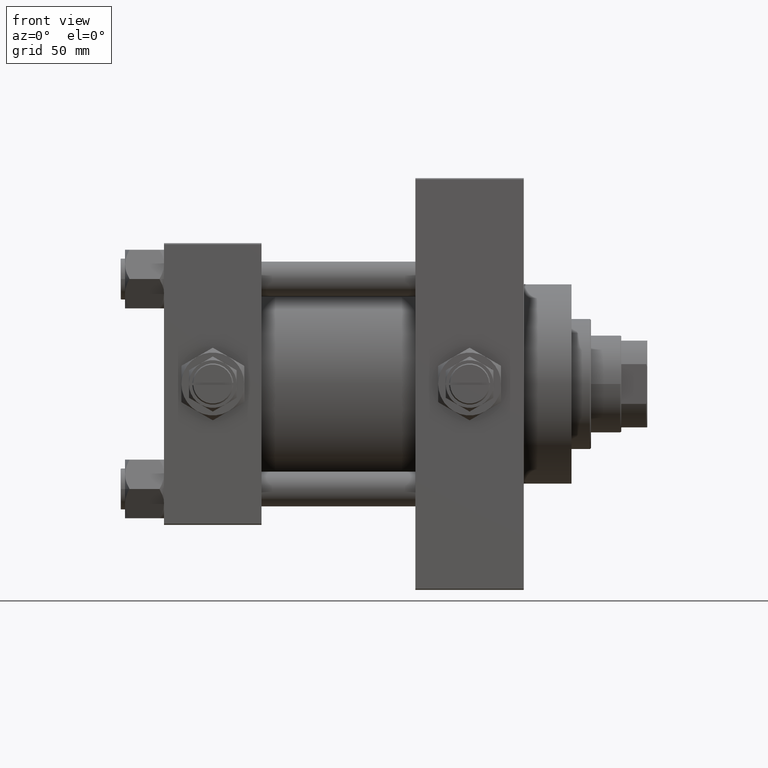
[diagram: clean part render]
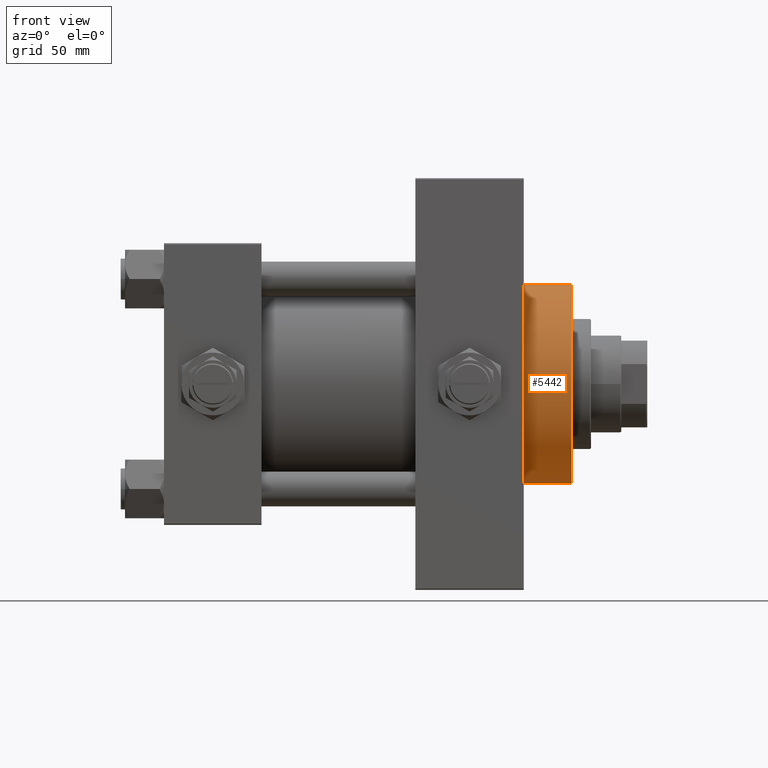
[diagram: same view with one face highlighted and labeled with its STEP entity id]
A machine part, front view. The second image highlights one B-rep face of the part: STEP entity #5442.
In plain terms, the highlighted cylindrical surface (partial cylindrical patch) has radius 46 mm, axis along (-1, -0, -0).
Its self-contained STEP definition (entity closure, byte-faithful):
#458 = CARTESIAN_POINT ( 'NONE',  ( 187.9999999999999716, 5.633375276077824704E-15, -46.00000000000000000 ) ) ;
#733 = EDGE_CURVE ( 'NONE', #34180, #32342, #6684, .T. ) ;
#864 = CARTESIAN_POINT ( 'NONE',  ( 165.9999999999999716, 5.633375276077824704E-15, -46.00000000000000000 ) ) ;
#981 = DIRECTION ( 'NONE',  ( -1.000000000000000000, -0.000000000000000000, -0.000000000000000000 ) ) ;
#2581 = EDGE_CURVE ( 'NONE', #34180, #34411, #13034, .T. ) ;
#2606 = EDGE_CURVE ( 'NONE', #32342, #15191, #34950, .T. ) ;
#5442 = ADVANCED_FACE ( 'NONE', ( #46807 ), #24882, .T. ) ;
#6684 = CIRCLE ( 'NONE', #25975, 46.00000000000000000 ) ;
#7596 = DIRECTION ( 'NONE',  ( 0.000000000000000000, 0.000000000000000000, -1.000000000000000000 ) ) ;
#8864 = CARTESIAN_POINT ( 'NONE',  ( 187.9999999999999716, 0.000000000000000000, 46.00000000000000000 ) ) ;
#9256 = CARTESIAN_POINT ( 'NONE',  ( 187.9999999999999716, 0.000000000000000000, 46.00000000000000000 ) ) ;
#9952 = VECTOR ( 'NONE', #25289, 1000.000000000000000 ) ;
#13034 = LINE ( 'NONE', #9256, #39709 ) ;
#13973 = AXIS2_PLACEMENT_3D ( 'NONE', #43541, #981, #39749 ) ;
#14155 = ORIENTED_EDGE ( 'NONE', *, *, #45663, .T. ) ;
#15191 = VERTEX_POINT ( 'NONE', #864 ) ;
#18969 = CARTESIAN_POINT ( 'NONE',  ( 187.9999999999999716, 5.633375276077824704E-15, -46.00000000000000000 ) ) ;
#20012 = CARTESIAN_POINT ( 'NONE',  ( 187.9999999999999716, 0.000000000000000000, 0.000000000000000000 ) ) ;
#20370 = CARTESIAN_POINT ( 'NONE',  ( 165.9999999999999716, 0.000000000000000000, 46.00000000000000000 ) ) ;
#20446 = ORIENTED_EDGE ( 'NONE', *, *, #2581, .T. ) ;
#24882 = CYLINDRICAL_SURFACE ( 'NONE', #13973, 46.00000000000000000 ) ;
#25289 = DIRECTION ( 'NONE',  ( -1.000000000000000000, -0.000000000000000000, -0.000000000000000000 ) ) ;
#25975 = AXIS2_PLACEMENT_3D ( 'NONE', #20012, #43690, #31109 ) ;
#31109 = DIRECTION ( 'NONE',  ( 0.000000000000000000, 0.000000000000000000, -1.000000000000000000 ) ) ;
#32342 = VERTEX_POINT ( 'NONE', #18969 ) ;
#34180 = VERTEX_POINT ( 'NONE', #8864 ) ;
#34411 = VERTEX_POINT ( 'NONE', #20370 ) ;
#34950 = LINE ( 'NONE', #458, #9952 ) ;
#39316 = AXIS2_PLACEMENT_3D ( 'NONE', #45359, #46101, #7596 ) ;
#39709 = VECTOR ( 'NONE', #39973, 1000.000000000000000 ) ;
#39749 = DIRECTION ( 'NONE',  ( 0.000000000000000000, 0.000000000000000000, 1.000000000000000000 ) ) ;
#39973 = DIRECTION ( 'NONE',  ( -1.000000000000000000, -0.000000000000000000, -0.000000000000000000 ) ) ;
#43541 = CARTESIAN_POINT ( 'NONE',  ( 187.9999999999999716, 0.000000000000000000, 0.000000000000000000 ) ) ;
#43690 = DIRECTION ( 'NONE',  ( 1.000000000000000000, 0.000000000000000000, 0.000000000000000000 ) ) ;
#45359 = CARTESIAN_POINT ( 'NONE',  ( 165.9999999999999716, 0.000000000000000000, 0.000000000000000000 ) ) ;
#45450 = ORIENTED_EDGE ( 'NONE', *, *, #2606, .F. ) ;
#45663 = EDGE_CURVE ( 'NONE', #34411, #15191, #47360, .T. ) ;
#45916 = ORIENTED_EDGE ( 'NONE', *, *, #733, .F. ) ;
#46101 = DIRECTION ( 'NONE',  ( 1.000000000000000000, 0.000000000000000000, 0.000000000000000000 ) ) ;
#46547 = EDGE_LOOP ( 'NONE', ( #45450, #45916, #20446, #14155 ) ) ;
#46807 = FACE_OUTER_BOUND ( 'NONE', #46547, .T. ) ;
#47360 = CIRCLE ( 'NONE', #39316, 46.00000000000000000 ) ;